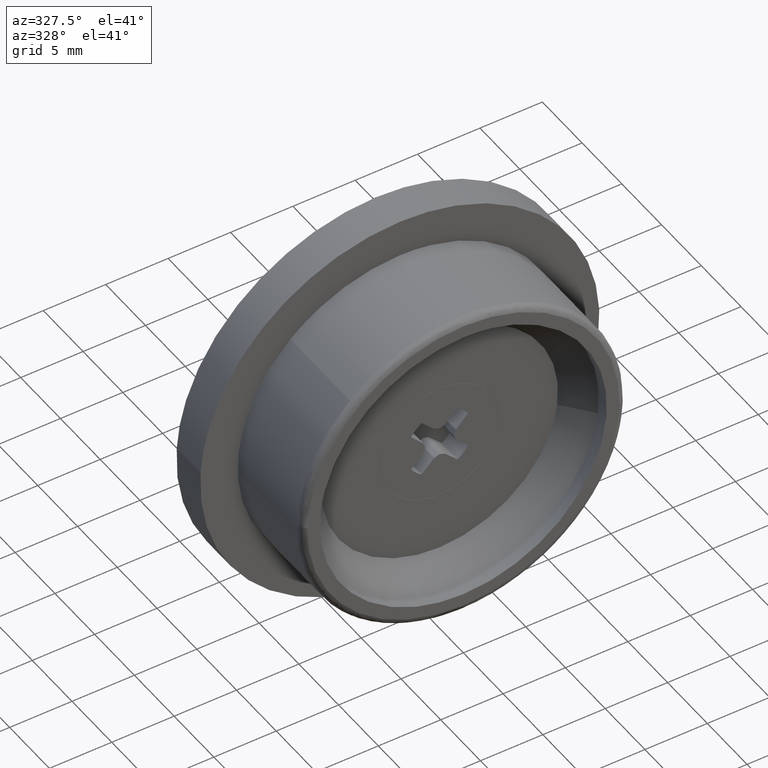
[diagram: clean part render]
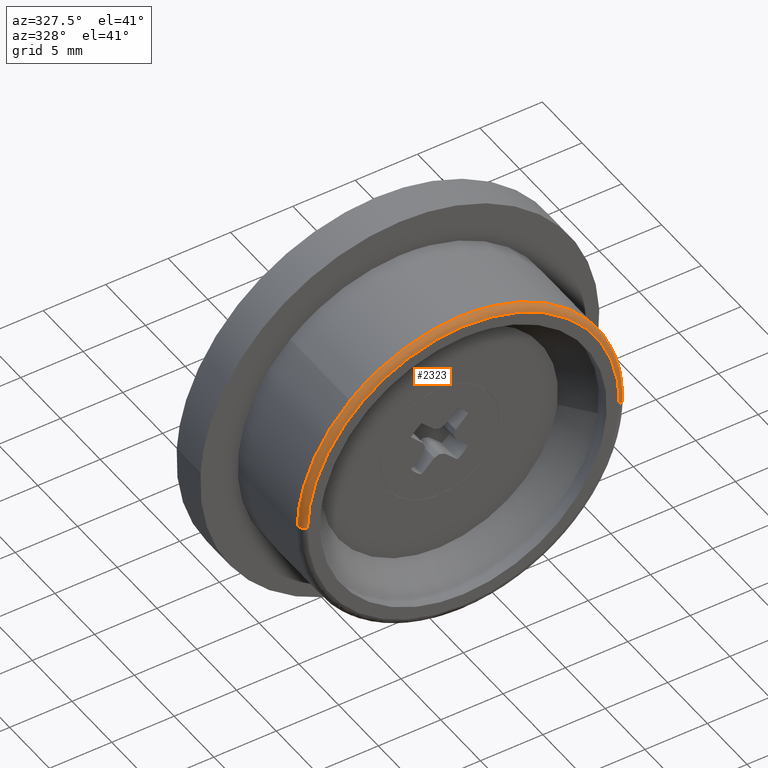
[diagram: same view with one face highlighted and labeled with its STEP entity id]
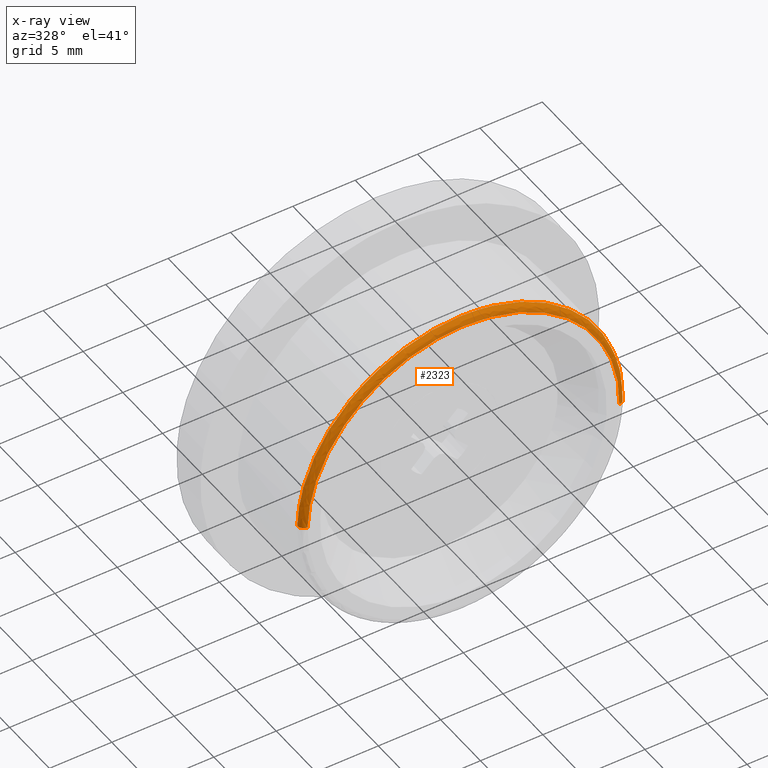
[diagram: x-ray of the same camera — body ghosted, the highlighted face saturated]
A machine part, auxiliary view. The second image highlights one B-rep face of the part: STEP entity #2323.
The next image is the same camera in x-ray: the body ghosted, the highlighted face saturated — about 0% of this face is hidden behind the body in this view.
In plain terms, the highlighted face is a freeform B-spline surface patch.
Its self-contained STEP definition (entity closure, byte-faithful):
#1697=CARTESIAN_POINT('',(-8.782672480398972,0.499999999958797,9.584605578844652));
#1698=VERTEX_POINT('',#1697);
#1704=CARTESIAN_POINT('',(0.0,0.500000000000012,13.0));
#1705=VERTEX_POINT('',#1704);
#1706=CARTESIAN_POINT('',(0.0,0.500000000000012,13.0));
#1707=CARTESIAN_POINT('',(-5.055423172747132,0.500000000000012,12.999999999999998));
#1708=CARTESIAN_POINT('',(-8.782672480398974,0.499999999958797,9.584605578844652));
#1716=(BOUNDED_CURVE()B_SPLINE_CURVE(2,(#1706,#1707,#1708),.UNSPECIFIED.,.F.,.U.)B_SPLINE_CURVE_WITH_KNOTS((3,3),(0.500000000000000,0.618415202197903),.UNSPECIFIED.)CURVE()GEOMETRIC_REPRESENTATION_ITEM()RATIONAL_B_SPLINE_CURVE((1.0,0.861267961087241,0.853959781687936))REPRESENTATION_ITEM(''));
#1717=EDGE_CURVE('',#1705,#1698,#1716,.T.);
#1719=CARTESIAN_POINT('',(12.995894460682679,0.499999999847085,-0.326691240772197));
#1720=VERTEX_POINT('',#1719);
#1721=CARTESIAN_POINT('',(12.995894460682674,0.499999999847085,-0.326691240772197));
#1722=CARTESIAN_POINT('',(12.999999999999998,0.500000000000012,-0.163371417612749));
#1723=CARTESIAN_POINT('',(13.0,0.500000000000012,-1.598567E-016));
#1724=CARTESIAN_POINT('',(13.0,0.500000000000012,13.0));
#1725=CARTESIAN_POINT('',(0.0,0.500000000000012,13.0));
#1733=(BOUNDED_CURVE()B_SPLINE_CURVE(2,(#1721,#1722,#1723,#1724,#1725),.UNSPECIFIED.,.F.,.U.)B_SPLINE_CURVE_WITH_KNOTS((3,2,3),(0.245579891769570,0.250000000000000,0.500000000000000),.UNSPECIFIED.)CURVE()GEOMETRIC_REPRESENTATION_ITEM()RATIONAL_B_SPLINE_CURVE((0.989826157681040,0.994821521091542,1.0,0.707106781186547,1.0))REPRESENTATION_ITEM(''));
#1734=EDGE_CURVE('',#1720,#1705,#1733,.T.);
#1808=CARTESIAN_POINT('',(-12.995894460682679,0.499999999847085,0.326691240772198));
#1809=VERTEX_POINT('',#1808);
#1825=CARTESIAN_POINT('',(-8.782672480398974,0.499999999958797,9.584605578844652));
#1826=CARTESIAN_POINT('',(-12.857020326946920,0.499999999913748,5.851153975168015));
#1827=CARTESIAN_POINT('',(-12.995894460682676,0.499999999847085,0.326691240772197));
#1835=(BOUNDED_CURVE()B_SPLINE_CURVE(2,(#1825,#1826,#1827),.UNSPECIFIED.,.F.,.U.)B_SPLINE_CURVE_WITH_KNOTS((3,3),(0.618415202197905,0.745579891769570),.UNSPECIFIED.)CURVE()GEOMETRIC_REPRESENTATION_ITEM()RATIONAL_B_SPLINE_CURVE((0.853959781687936,0.846111613991585,0.989826157681038))REPRESENTATION_ITEM(''));
#1836=EDGE_CURVE('',#1698,#1809,#1835,.T.);
#2200=CARTESIAN_POINT('',(12.496052368122371,4.951214E-015,-0.314126193149162));
#2201=VERTEX_POINT('',#2200);
#2202=CARTESIAN_POINT('',(12.995894460682674,0.499999999847086,-0.326691240772197));
#2203=CARTESIAN_POINT('',(12.995894460377137,4.166348E-009,-0.326691240755700));
#2204=CARTESIAN_POINT('',(12.496052368122374,4.951214E-015,-0.314126193149162));
#2212=(BOUNDED_CURVE()B_SPLINE_CURVE(2,(#2202,#2203,#2204),.UNSPECIFIED.,.F.,.U.)B_SPLINE_CURVE_WITH_KNOTS((3,3),(-1.723441281354963,-0.263586887551837),.UNSPECIFIED.)CURVE()GEOMETRIC_REPRESENTATION_ITEM()RATIONAL_B_SPLINE_CURVE((0.883897566916693,0.626638728870258,0.888510405968566))REPRESENTATION_ITEM(''));
#2213=EDGE_CURVE('',#1720,#2201,#2212,.T.);
#2230=CARTESIAN_POINT('',(-12.496052368122371,4.959024E-015,0.314126193149165));
#2231=VERTEX_POINT('',#2230);
#2247=CARTESIAN_POINT('',(-12.995894460682676,0.499999999847085,0.326691240772197));
#2248=CARTESIAN_POINT('',(-12.995894460377142,4.166348E-009,0.326691240755702));
#2249=CARTESIAN_POINT('',(-12.496052368122374,4.959024E-015,0.314126193149165));
#2257=(BOUNDED_CURVE()B_SPLINE_CURVE(2,(#2247,#2248,#2249),.UNSPECIFIED.,.F.,.U.)B_SPLINE_CURVE_WITH_KNOTS((3,3),(-1.723441281354962,-0.263586887551836),.UNSPECIFIED.)CURVE()GEOMETRIC_REPRESENTATION_ITEM()RATIONAL_B_SPLINE_CURVE((0.883897566916693,0.626638728870257,0.888510405968566))REPRESENTATION_ITEM(''));
#2258=EDGE_CURVE('',#1809,#2231,#2257,.T.);
#2263=CARTESIAN_POINT('',(12.994677997561315,0.534862109766991,-0.326660661271707));
#2264=CARTESIAN_POINT('',(13.321338658833019,0.534862109766991,12.668017336289608));
#2265=CARTESIAN_POINT('',(0.326660661271707,0.534862109766991,12.994677997561315));
#2266=CARTESIAN_POINT('',(-12.668017336289607,0.534862109766991,13.321338658833019));
#2267=CARTESIAN_POINT('',(-12.994677997561315,0.534862109766991,0.326660661271708));
#2268=CARTESIAN_POINT('',(13.034751854040376,-0.038668266771650,-0.327668039250569));
#2269=CARTESIAN_POINT('',(13.362419893290941,-0.038668266771650,12.707083814789803));
#2270=CARTESIAN_POINT('',(0.327668039250570,-0.038668266771650,13.034751854040376));
#2271=CARTESIAN_POINT('',(-12.707083814789803,-0.038668266771650,13.362419893290941));
#2272=CARTESIAN_POINT('',(-13.034751854040376,-0.038668266771650,0.327668039250571));
#2273=CARTESIAN_POINT('',(12.461387664235103,0.001203850148755,-0.313254790578578));
#2274=CARTESIAN_POINT('',(12.774642454813673,0.001203850148755,12.148132873656522));
#2275=CARTESIAN_POINT('',(0.313254790578579,0.001203850148755,12.461387664235103));
#2276=CARTESIAN_POINT('',(-12.148132873656520,0.001203850148755,12.774642454813677));
#2277=CARTESIAN_POINT('',(-12.461387664235103,0.001203850148755,0.313254790578579));
#2285=(BOUNDED_SURFACE()B_SPLINE_SURFACE(2,2,((#2263,#2268,#2273),(#2264,#2269,#2274),(#2265,#2270,#2275),(#2266,#2271,#2276),(#2267,#2272,#2277)),.UNSPECIFIED.,.F.,.F.,.U.)B_SPLINE_SURFACE_WITH_KNOTS((3,2,3),(3,3),(0.0,21.537089104590351,43.074178209180701),(0.0,0.911185626215136),.UNSPECIFIED.)GEOMETRIC_REPRESENTATION_ITEM()RATIONAL_B_SPLINE_SURFACE(((0.910892955825337,0.599412775019570,0.915966929766667),(0.644098585999154,0.423848837946185,0.647686427380632),(0.910892955825337,0.599412775019570,0.915966929766667),(0.644098585999154,0.423848837946185,0.647686427380632),(0.910892955825337,0.599412775019570,0.915966929766667)))REPRESENTATION_ITEM('')SURFACE());
#2286=ORIENTED_EDGE('',*,*,#1717,.T.);
#2287=ORIENTED_EDGE('',*,*,#1836,.T.);
#2288=ORIENTED_EDGE('',*,*,#2258,.T.);
#2289=CARTESIAN_POINT('',(0.0,-2.296137E-015,12.500000000000000));
#2290=VERTEX_POINT('',#2289);
#2291=CARTESIAN_POINT('',(0.0,-2.296137E-015,12.500000000000000));
#2292=CARTESIAN_POINT('',(-12.189723452150542,-2.296137E-015,12.499999999999998));
#2293=CARTESIAN_POINT('',(-12.496052368122372,4.959024E-015,0.314126193149165));
#2301=(BOUNDED_CURVE()B_SPLINE_CURVE(2,(#2291,#2292,#2293),.UNSPECIFIED.,.F.,.U.)B_SPLINE_CURVE_WITH_KNOTS((3,3),(0.500000000000000,0.745579891768264),.UNSPECIFIED.)CURVE()GEOMETRIC_REPRESENTATION_ITEM()RATIONAL_B_SPLINE_CURVE((1.0,0.712285260096536,0.989826157678087))REPRESENTATION_ITEM(''));
#2302=EDGE_CURVE('',#2290,#2231,#2301,.T.);
#2303=ORIENTED_EDGE('',*,*,#2302,.F.);
#2304=CARTESIAN_POINT('',(12.496052368122374,4.951214E-015,-0.314126193149162));
#2305=CARTESIAN_POINT('',(12.500000000000000,-2.296137E-015,-0.157087901597365));
#2306=CARTESIAN_POINT('',(12.500000000000000,-2.296137E-015,-1.598567E-016));
#2307=CARTESIAN_POINT('',(12.499999999999998,-2.296137E-015,12.499999999999998));
#2308=CARTESIAN_POINT('',(0.0,-2.296137E-015,12.500000000000000));
#2316=(BOUNDED_CURVE()B_SPLINE_CURVE(2,(#2304,#2305,#2306,#2307,#2308),.UNSPECIFIED.,.F.,.U.)B_SPLINE_CURVE_WITH_KNOTS((3,2,3),(0.245579891768265,0.250000000000000,0.500000000000000),.UNSPECIFIED.)CURVE()GEOMETRIC_REPRESENTATION_ITEM()RATIONAL_B_SPLINE_CURVE((0.989826157678089,0.994821521090013,1.0,0.707106781186547,1.0))REPRESENTATION_ITEM(''));
#2317=EDGE_CURVE('',#2201,#2290,#2316,.T.);
#2318=ORIENTED_EDGE('',*,*,#2317,.F.);
#2319=ORIENTED_EDGE('',*,*,#2213,.F.);
#2320=ORIENTED_EDGE('',*,*,#1734,.T.);
#2321=EDGE_LOOP('',(#2286,#2287,#2288,#2303,#2318,#2319,#2320));
#2322=FACE_OUTER_BOUND('',#2321,.T.);
#2323=ADVANCED_FACE('',(#2322),#2285,.T.);